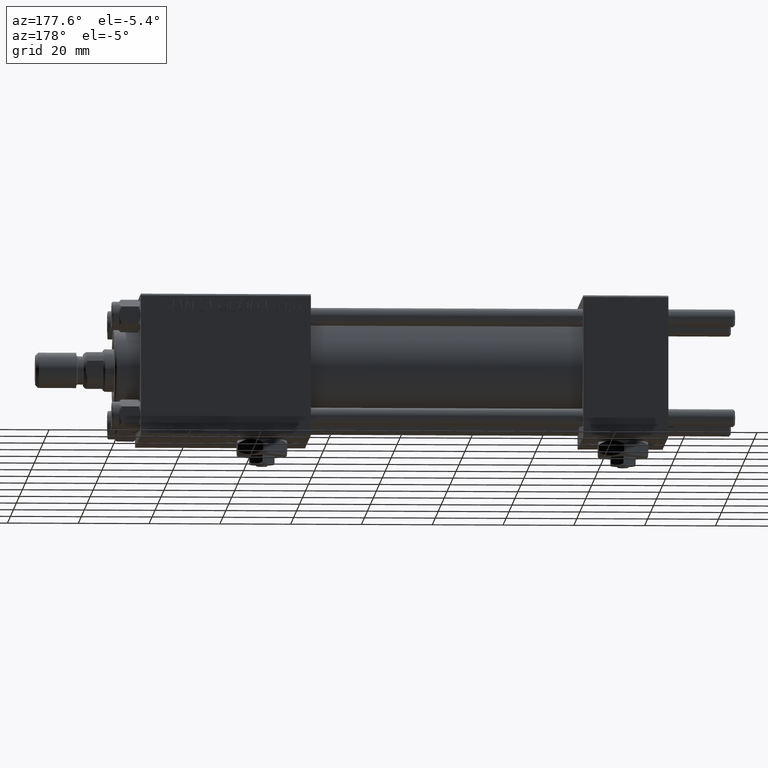
[diagram: clean part render]
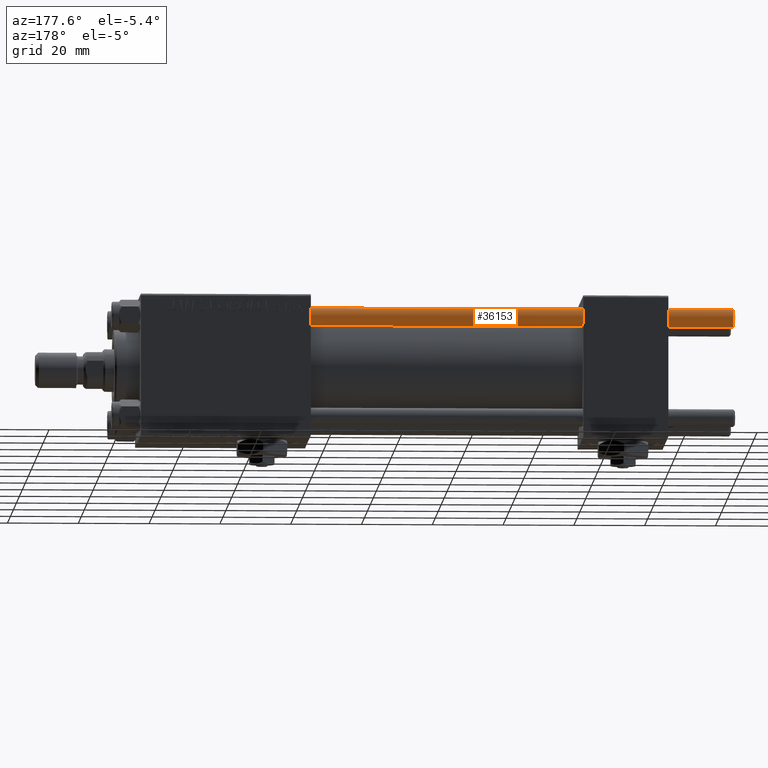
[diagram: same view with one face highlighted and labeled with its STEP entity id]
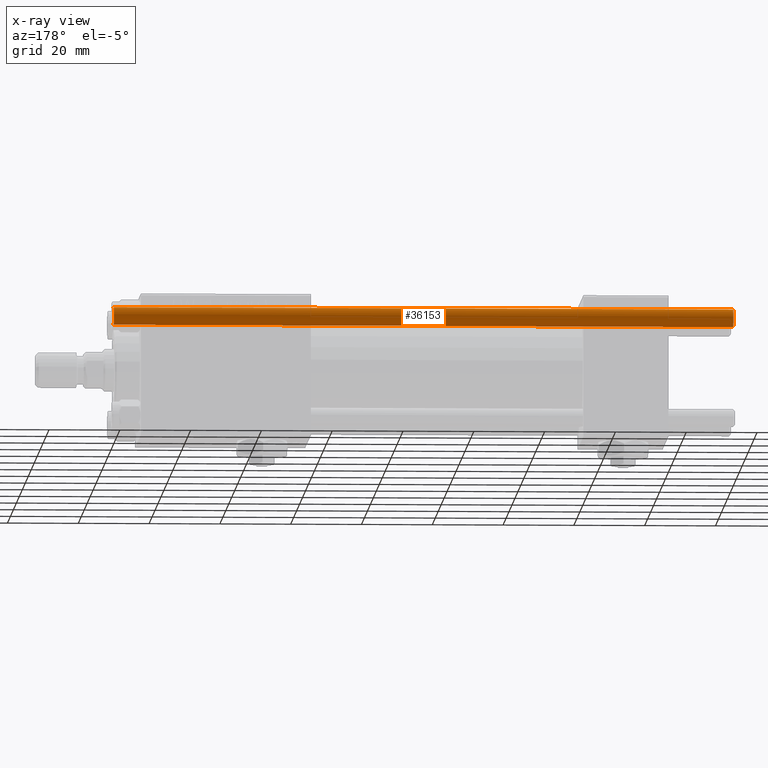
[diagram: x-ray of the same camera — body ghosted, the highlighted face saturated]
A machine part, auxiliary view. The second image highlights one B-rep face of the part: STEP entity #36153.
The next image is the same camera in x-ray: the body ghosted, the highlighted face saturated — about 0% of this face is hidden behind the body in this view.
In plain terms, the highlighted cylindrical surface (edge-blend (fillet) strip) has radius 2.5 mm, axis along (-1, -0, -0).
Its self-contained STEP definition (entity closure, byte-faithful):
#411 = FACE_OUTER_BOUND ( 'NONE', #11104, .T. ) ;
#1337 = ORIENTED_EDGE ( 'NONE', *, *, #4637, .F. ) ;
#1408 = CARTESIAN_POINT ( 'NONE',  ( -2.500000000000000000, 0.000000000000000000, 176.0000000000000000 ) ) ;
#2201 = DIRECTION ( 'NONE',  ( -0.000000000000000000, -0.000000000000000000, -1.000000000000000000 ) ) ;
#4637 = EDGE_CURVE ( 'NONE', #20818, #28320, #42658, .T. ) ;
#5818 = CARTESIAN_POINT ( 'NONE',  ( 2.500000000000000000, 3.061616997868383141E-16, 175.5000000000000000 ) ) ;
#8079 = AXIS2_PLACEMENT_3D ( 'NONE', #25589, #13710, #29826 ) ;
#8593 = DIRECTION ( 'NONE',  ( -1.000000000000000000, 0.000000000000000000, 0.000000000000000000 ) ) ;
#8854 = CARTESIAN_POINT ( 'NONE',  ( 0.000000000000000000, 0.000000000000000000, 176.0000000000000000 ) ) ;
#8977 = CARTESIAN_POINT ( 'NONE',  ( -2.500000000000000000, 0.000000000000000000, 0.5000000000000281997 ) ) ;
#11104 = EDGE_LOOP ( 'NONE', ( #45373, #40368, #22092, #1337 ) ) ;
#11404 = CARTESIAN_POINT ( 'NONE',  ( 2.500000000000000000, 3.061616997868383141E-16, 176.0000000000000000 ) ) ;
#11416 = VERTEX_POINT ( 'NONE', #14291 ) ;
#12089 = CARTESIAN_POINT ( 'NONE',  ( -2.500000000000000000, 0.000000000000000000, 175.5000000000000000 ) ) ;
#13710 = DIRECTION ( 'NONE',  ( 0.000000000000000000, 0.000000000000000000, -1.000000000000000000 ) ) ;
#14291 = CARTESIAN_POINT ( 'NONE',  ( 2.500000000000000000, 3.061616997868383141E-16, 0.5000000000000281997 ) ) ;
#17673 = VECTOR ( 'NONE', #2201, 1000.000000000000000 ) ;
#19608 = CIRCLE ( 'NONE', #31415, 2.500000000000000000 ) ;
#20818 = VERTEX_POINT ( 'NONE', #12089 ) ;
#21232 = AXIS2_PLACEMENT_3D ( 'NONE', #8854, #36612, #8593 ) ;
#22092 = ORIENTED_EDGE ( 'NONE', *, *, #41839, .T. ) ;
#25589 = CARTESIAN_POINT ( 'NONE',  ( 0.000000000000000000, 0.000000000000000000, 175.5000000000000000 ) ) ;
#25905 = DIRECTION ( 'NONE',  ( -0.000000000000000000, -0.000000000000000000, 1.000000000000000000 ) ) ;
#26941 = DIRECTION ( 'NONE',  ( 1.000000000000000000, 0.000000000000000000, 0.000000000000000000 ) ) ;
#27227 = EDGE_CURVE ( 'NONE', #20818, #40872, #50316, .T. ) ;
#28320 = VERTEX_POINT ( 'NONE', #8977 ) ;
#29826 = DIRECTION ( 'NONE',  ( 1.000000000000000000, 0.000000000000000000, 0.000000000000000000 ) ) ;
#30134 = CARTESIAN_POINT ( 'NONE',  ( 0.000000000000000000, 0.000000000000000000, 0.5000000000000281997 ) ) ;
#31415 = AXIS2_PLACEMENT_3D ( 'NONE', #30134, #25905, #26941 ) ;
#32903 = CYLINDRICAL_SURFACE ( 'NONE', #21232, 2.500000000000000000 ) ;
#33812 = VECTOR ( 'NONE', #51595, 1000.000000000000000 ) ;
#36153 = ADVANCED_FACE ( 'NONE', ( #411 ), #32903, .T. ) ;
#36612 = DIRECTION ( 'NONE',  ( -0.000000000000000000, -0.000000000000000000, -1.000000000000000000 ) ) ;
#37351 = EDGE_CURVE ( 'NONE', #40872, #11416, #50826, .T. ) ;
#40368 = ORIENTED_EDGE ( 'NONE', *, *, #37351, .T. ) ;
#40872 = VERTEX_POINT ( 'NONE', #5818 ) ;
#41839 = EDGE_CURVE ( 'NONE', #11416, #28320, #19608, .T. ) ;
#42658 = LINE ( 'NONE', #1408, #17673 ) ;
#45373 = ORIENTED_EDGE ( 'NONE', *, *, #27227, .T. ) ;
#50316 = CIRCLE ( 'NONE', #8079, 2.500000000000000000 ) ;
#50826 = LINE ( 'NONE', #11404, #33812 ) ;
#51595 = DIRECTION ( 'NONE',  ( -0.000000000000000000, -0.000000000000000000, -1.000000000000000000 ) ) ;